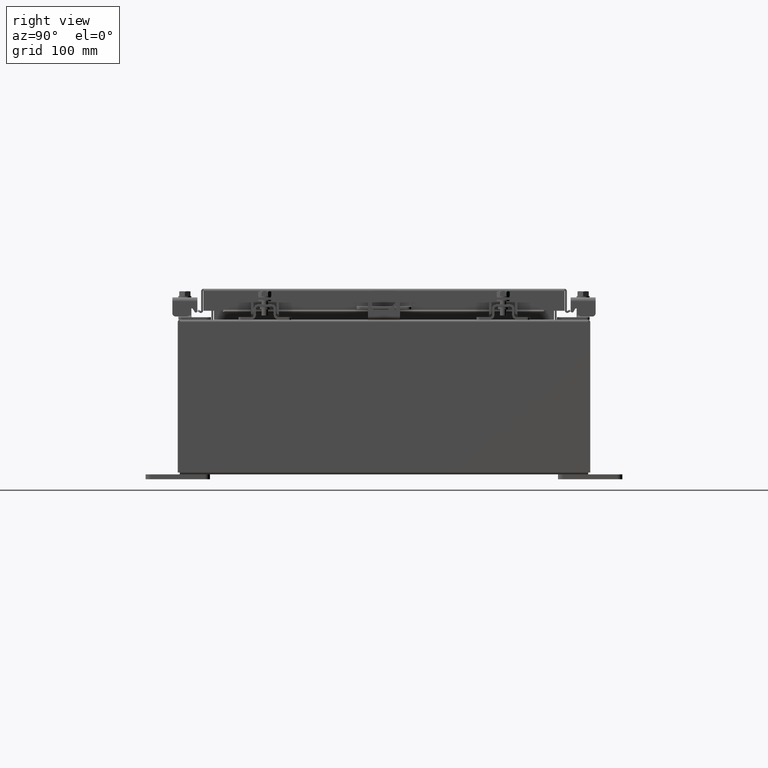
[diagram: clean part render]
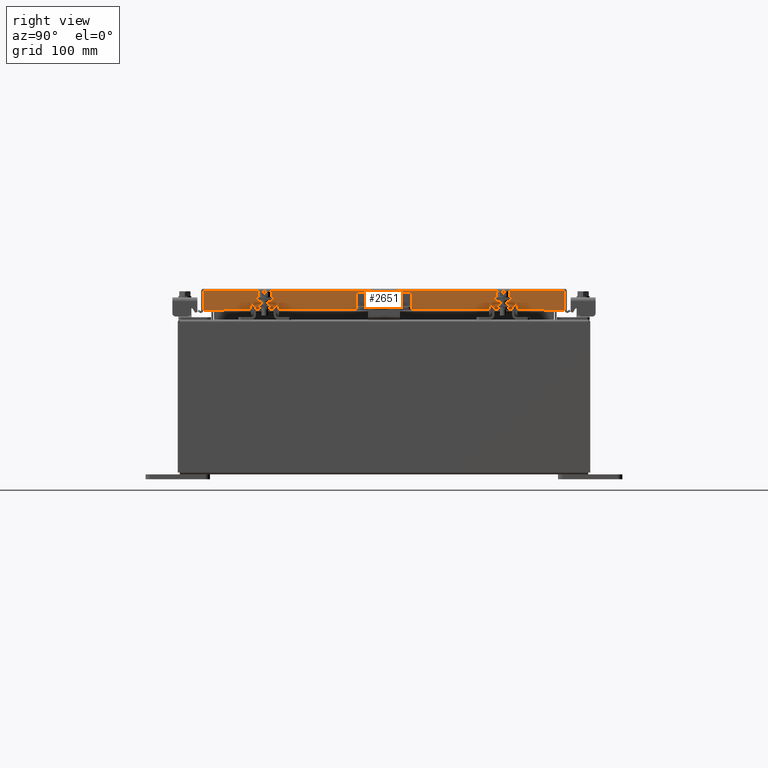
[diagram: same view with one face highlighted and labeled with its STEP entity id]
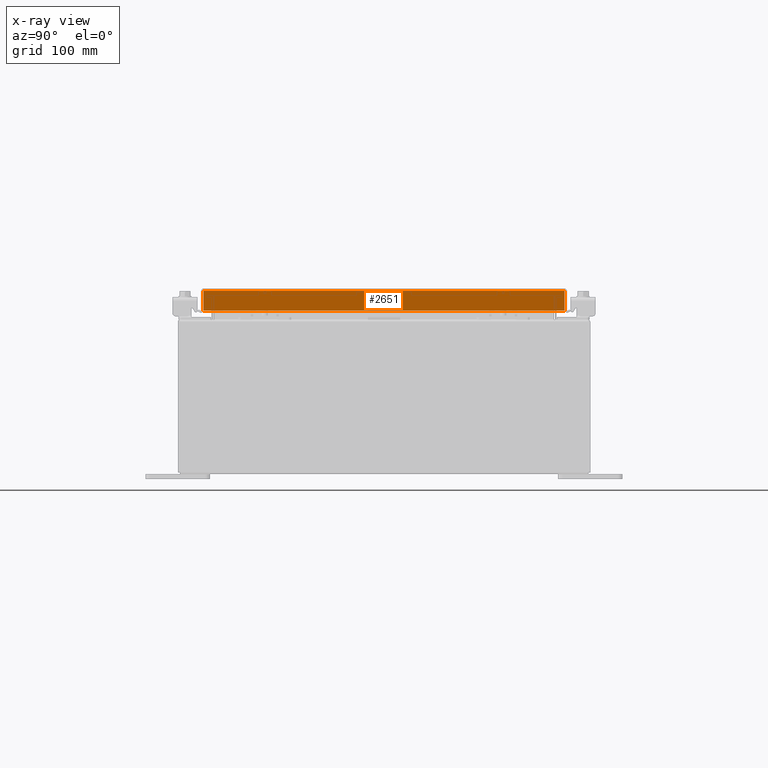
[diagram: x-ray of the same camera — body ghosted, the highlighted face saturated]
A machine part, right view. The second image highlights one B-rep face of the part: STEP entity #2651.
The next image is the same camera in x-ray: the body ghosted, the highlighted face saturated — about 0% of this face is hidden behind the body in this view.
In plain terms, the highlighted planar face has unit normal (1, 0, 0).
Its self-contained STEP definition (entity closure, byte-faithful):
#2601 = CARTESIAN_POINT ( 'NONE',  ( 9.077999999999995900, 6.255157864376273300, -0.8500000000000000900 ) ) ;
#2651 = ADVANCED_FACE ( 'NONE', ( #12870 ), #13451, .T. ) ;
#3619 = DIRECTION ( 'NONE',  ( 2.818880942772360100E-015, 0.0000000000000000000, -1.000000000000000000 ) ) ;
#3885 = EDGE_CURVE ( 'NONE', #4882, #26494, #10646, .T. ) ;
#4882 = VERTEX_POINT ( 'NONE', #24115 ) ;
#5694 = ORIENTED_EDGE ( 'NONE', *, *, #23029, .T. ) ;
#6486 = CARTESIAN_POINT ( 'NONE',  ( 9.077999999999995900, 6.255157864376272400, -0.8500000000000000900 ) ) ;
#6555 = DIRECTION ( 'NONE',  ( 0.0000000000000000000, -1.000000000000000000, 0.0000000000000000000 ) ) ;
#6815 = ORIENTED_EDGE ( 'NONE', *, *, #19697, .T. ) ;
#6849 = ORIENTED_EDGE ( 'NONE', *, *, #3885, .F. ) ;
#8002 = LINE ( 'NONE', #17956, #9306 ) ;
#8495 = CARTESIAN_POINT ( 'NONE',  ( 9.077999999999999400, 7.005157864376269700, 7.476737077273898600E-014 ) ) ;
#9306 = VECTOR ( 'NONE', #16224, 39.37007874015748100 ) ;
#9465 = VERTEX_POINT ( 'NONE', #23606 ) ;
#10646 = LINE ( 'NONE', #26320, #19232 ) ;
#10927 = CARTESIAN_POINT ( 'NONE',  ( 9.078000000000001200, -7.005157864376262600, -0.8499999999999996400 ) ) ;
#11287 = CARTESIAN_POINT ( 'NONE',  ( 9.077999999999995900, -6.255157864376262600, -0.8500000000000000900 ) ) ;
#12870 = FACE_OUTER_BOUND ( 'NONE', #25020, .T. ) ;
#13451 = PLANE ( 'NONE',  #16555 ) ;
#14729 = VECTOR ( 'NONE', #6555, 39.37007874015748100 ) ;
#16224 = DIRECTION ( 'NONE',  ( 0.0000000000000000000, -1.000000000000000000, 0.0000000000000000000 ) ) ;
#16555 = AXIS2_PLACEMENT_3D ( 'NONE', #25050, #25270, #3619 ) ;
#16685 = LINE ( 'NONE', #8495, #25590 ) ;
#17765 = LINE ( 'NONE', #25830, #22363 ) ;
#17884 = DIRECTION ( 'NONE',  ( -2.818880942772360100E-015, -6.982962677686267500E-015, 1.000000000000000000 ) ) ;
#17956 = CARTESIAN_POINT ( 'NONE',  ( 9.078000000000001200, -7.093999999999999400, -0.8499999999999996400 ) ) ;
#18185 = LINE ( 'NONE', #2601, #14729 ) ;
#19023 = VERTEX_POINT ( 'NONE', #11287 ) ;
#19232 = VECTOR ( 'NONE', #26346, 39.37007874015748100 ) ;
#19550 = DIRECTION ( 'NONE',  ( -2.818880942772360100E-015, -6.982962677686267500E-015, 1.000000000000000000 ) ) ;
#19697 = EDGE_CURVE ( 'NONE', #4882, #9465, #16685, .T. ) ;
#19814 = EDGE_CURVE ( 'NONE', #19023, #20645, #8002, .T. ) ;
#19819 = EDGE_CURVE ( 'NONE', #26494, #19023, #18185, .T. ) ;
#19824 = EDGE_CURVE ( 'NONE', #20645, #23507, #21251, .T. ) ;
#19959 = DIRECTION ( 'NONE',  ( 2.171061248348209200E-031, -1.000000000000000000, -7.701855070945201600E-017 ) ) ;
#20645 = VERTEX_POINT ( 'NONE', #10927 ) ;
#21033 = ORIENTED_EDGE ( 'NONE', *, *, #19819, .F. ) ;
#21251 = LINE ( 'NONE', #24467, #24402 ) ;
#21366 = ORIENTED_EDGE ( 'NONE', *, *, #19814, .F. ) ;
#21991 = ORIENTED_EDGE ( 'NONE', *, *, #19824, .F. ) ;
#22363 = VECTOR ( 'NONE', #19959, 39.37007874015748100 ) ;
#23029 = EDGE_CURVE ( 'NONE', #9465, #23507, #17765, .T. ) ;
#23486 = CARTESIAN_POINT ( 'NONE',  ( 9.077999999999999400, -7.005157864376268900, -0.08770000000000115200 ) ) ;
#23507 = VERTEX_POINT ( 'NONE', #23486 ) ;
#23606 = CARTESIAN_POINT ( 'NONE',  ( 9.077999999999999400, 7.005157864376268900, -0.08770000000000061100 ) ) ;
#24115 = CARTESIAN_POINT ( 'NONE',  ( 9.078000000000001200, 7.005157864376274200, -0.8499999999999996400 ) ) ;
#24402 = VECTOR ( 'NONE', #17884, 39.37007874015748100 ) ;
#24467 = CARTESIAN_POINT ( 'NONE',  ( 9.077999999999999400, -7.005157864376268900, -0.07469999999999978000 ) ) ;
#25020 = EDGE_LOOP ( 'NONE', ( #21991, #21366, #21033, #6849, #6815, #5694 ) ) ;
#25050 = CARTESIAN_POINT ( 'NONE',  ( 9.077999999999999400, 0.0000000000000000000, 2.585061485449906600E-014 ) ) ;
#25270 = DIRECTION ( 'NONE',  ( 1.000000000000000000, 0.0000000000000000000, 2.818880942772360100E-015 ) ) ;
#25590 = VECTOR ( 'NONE', #19550, 39.37007874015748100 ) ;
#25830 = CARTESIAN_POINT ( 'NONE',  ( 9.077999999999999400, 6.754526897220979400E-018, -0.08770000000000061100 ) ) ;
#26320 = CARTESIAN_POINT ( 'NONE',  ( 9.078000000000001200, -7.093999999999999400, -0.8499999999999996400 ) ) ;
#26346 = DIRECTION ( 'NONE',  ( 0.0000000000000000000, -1.000000000000000000, 0.0000000000000000000 ) ) ;
#26494 = VERTEX_POINT ( 'NONE', #6486 ) ;